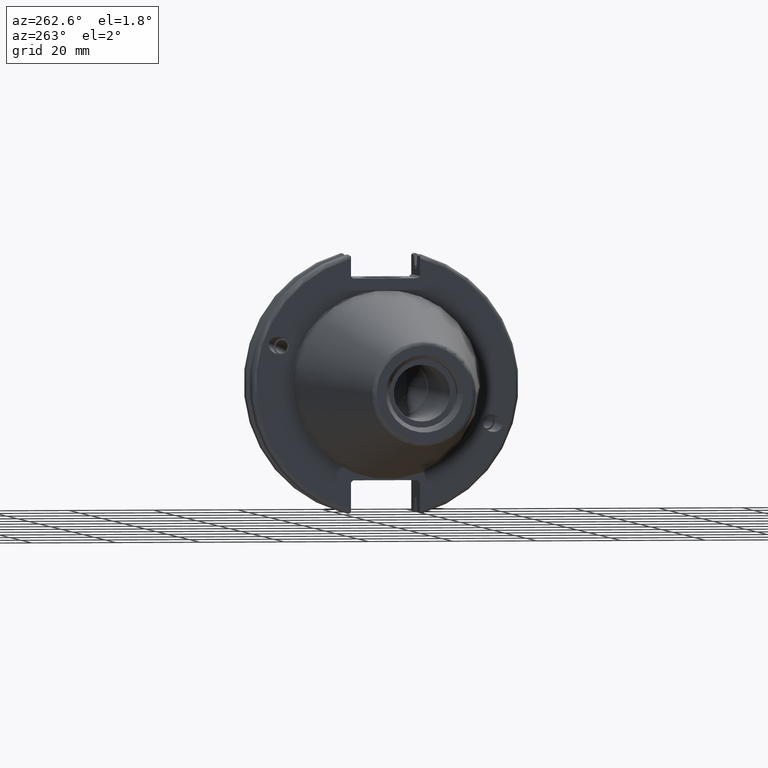
[diagram: clean part render]
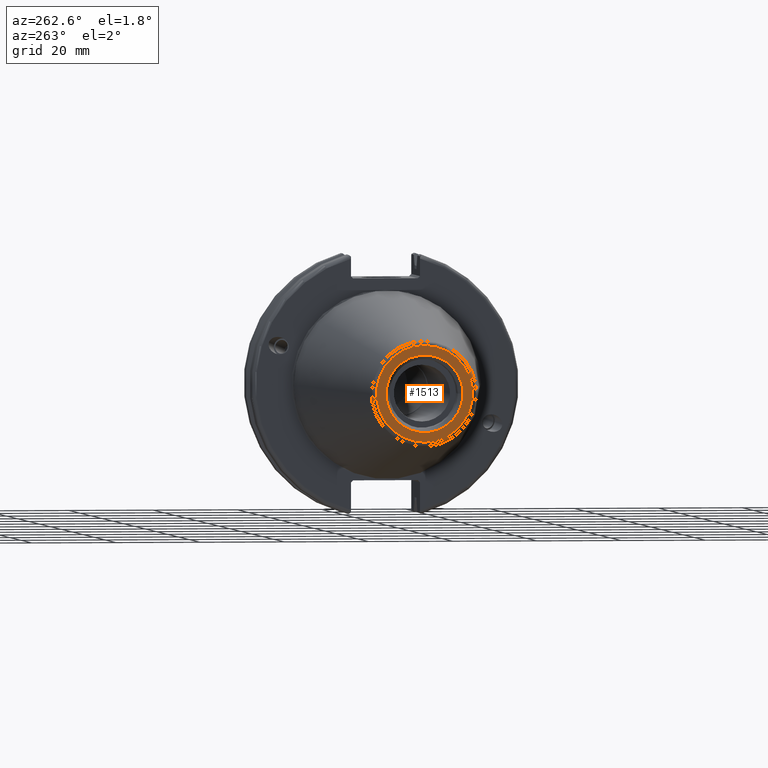
[diagram: same view with one face highlighted and labeled with its STEP entity id]
A machine part, auxiliary view. The second image highlights one B-rep face of the part: STEP entity #1513.
In plain terms, the highlighted planar face has unit normal (-1, 0, 0).
Its self-contained STEP definition (entity closure, byte-faithful):
#118=FACE_BOUND('',#510,.T.);
#139=PLANE('',#1697);
#413=FACE_OUTER_BOUND('',#509,.T.);
#509=EDGE_LOOP('',(#1316));
#510=EDGE_LOOP('',(#1317));
#599=CIRCLE('',#1696,11.4071305970304);
#600=CIRCLE('',#1698,9.15);
#750=VERTEX_POINT('',#2869);
#751=VERTEX_POINT('',#2873);
#956=EDGE_CURVE('',#750,#750,#599,.T.);
#957=EDGE_CURVE('',#751,#751,#600,.T.);
#1316=ORIENTED_EDGE('',*,*,#956,.F.);
#1317=ORIENTED_EDGE('',*,*,#957,.T.);
#1513=ADVANCED_FACE('',(#413,#118),#139,.T.);
#1696=AXIS2_PLACEMENT_3D('',#2871,#2076,#2077);
#1697=AXIS2_PLACEMENT_3D('',#2872,#2078,#2079);
#1698=AXIS2_PLACEMENT_3D('',#2874,#2080,#2081);
#2076=DIRECTION('center_axis',(1.,0.,0.));
#2077=DIRECTION('ref_axis',(0.,-1.,1.83697019872103E-16));
#2078=DIRECTION('center_axis',(-1.,0.,0.));
#2079=DIRECTION('ref_axis',(0.,0.,1.));
#2080=DIRECTION('center_axis',(1.,0.,0.));
#2081=DIRECTION('ref_axis',(0.,0.,-1.));
#2869=CARTESIAN_POINT('',(-68.25,-1.39697059731091E-15,11.4071305970304));
#2871=CARTESIAN_POINT('Origin',(-68.25,0.,0.));
#2872=CARTESIAN_POINT('Origin',(-68.25,12.271875,0.));
#2873=CARTESIAN_POINT('',(-68.25,-9.15,-1.12055182121983E-15));
#2874=CARTESIAN_POINT('Origin',(-68.25,0.,0.));